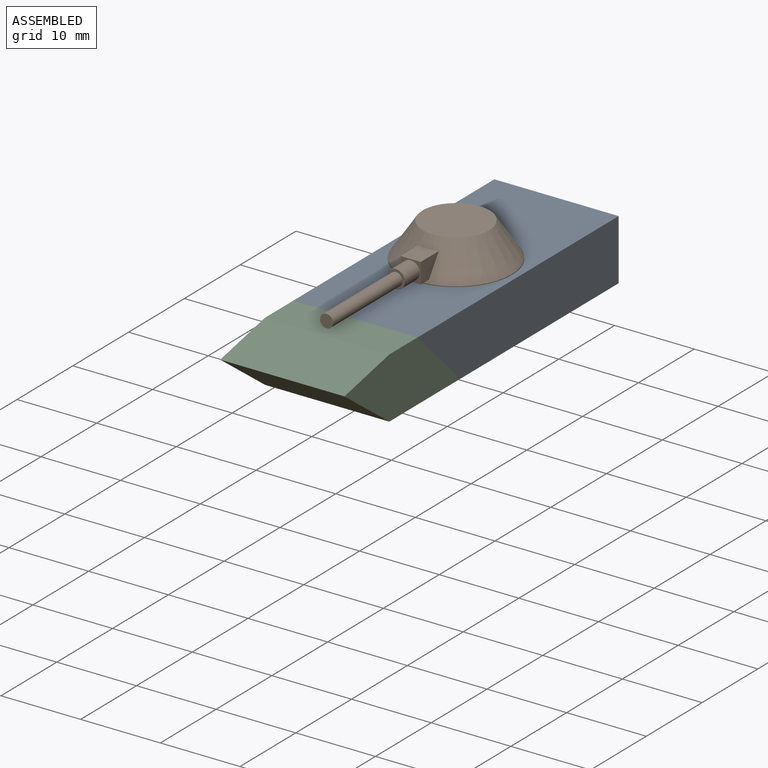
[diagram: assembled view]
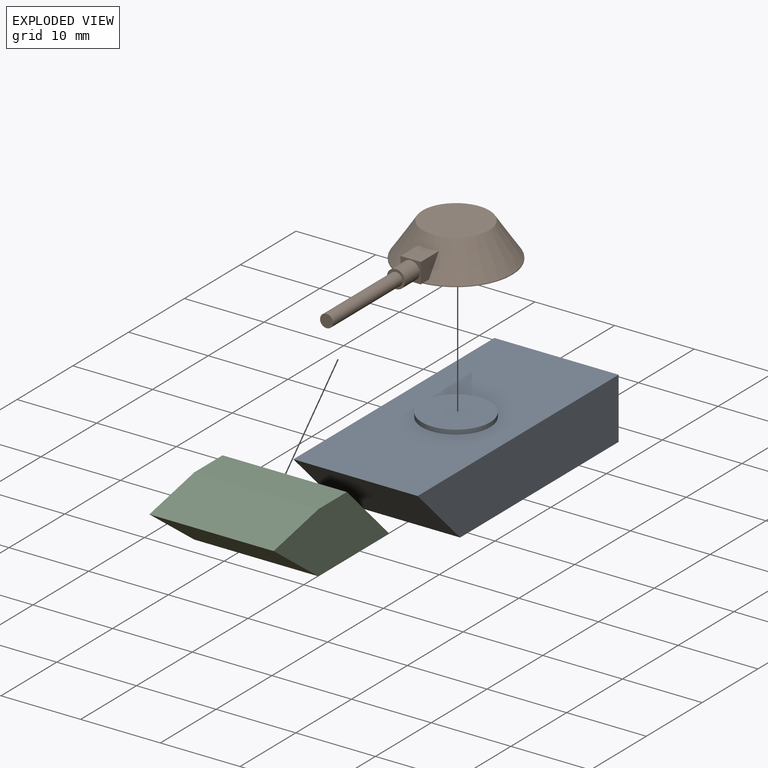
[diagram: exploded view]
GUIDED TOUR — MATED ASSEMBLY (Onshape document 009e5649e15d7b15c3161b02, AutoMate assembly 009e5649e15d7b15c3161b02_f679f5b906f1007318d9c520_9c38f8080bfe2e4f5b1a68ce_default)

This assembly has 3 components, labeled P0..P2 below (a component is one placed occurrence of a part; the same part can appear more than once), held together by 2 mates. A mate is a constraint between two components; its type names the relative motion it leaves free:
  PARALLEL — keeps the two listed directions parallel.
Axis/direction vectors are unit vectors and 'through' points are millimeter coordinates, both in the assembly's world frame.

MATES
  1. PARALLEL "Parallel 1": P1 <-> P0, direction (0.000, 0.000, -1.000) through (-10.23, -2.38, 9.39) mm
  2. PARALLEL "Parallel 2": P2 <-> P0, direction (0.000, 0.707, 0.707) through (-10.23, -16.58, 5.02) mm

ASSEMBLY ORDER
  1. P1 — the base component [order verified]
  2. P0 [order verified]
  3. P2 [order verified]
(P0 verified with a relaxed clearance tolerance: the source model stores slight part interference there.)
Order-tag legend:
  [order verified] — this step's position reverses a verified removal order: the component was checked to insert without passing through the ones already placed.

Of the 3 components, 2 carry the full construction recipe — the FeatureScript program that regenerates the part's solid from scratch; the rest are supplied as boundary geometry only.
Each toured component is shown spotlighted twice — in the assembled view, then in the exploded view, where a leader line traces a displaced component back to its assembled socket (saturated green if recipe-attached, orange if geometry-only; every other component desaturated gray) — followed by its recipe or geometry summary and the mates that hold it.
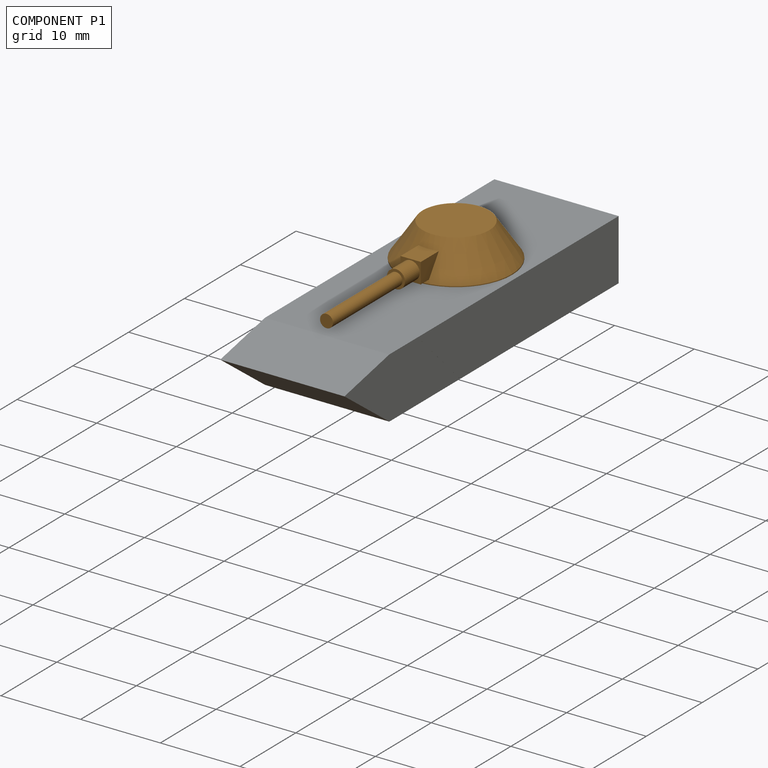
[diagram: component P1 — assembled]
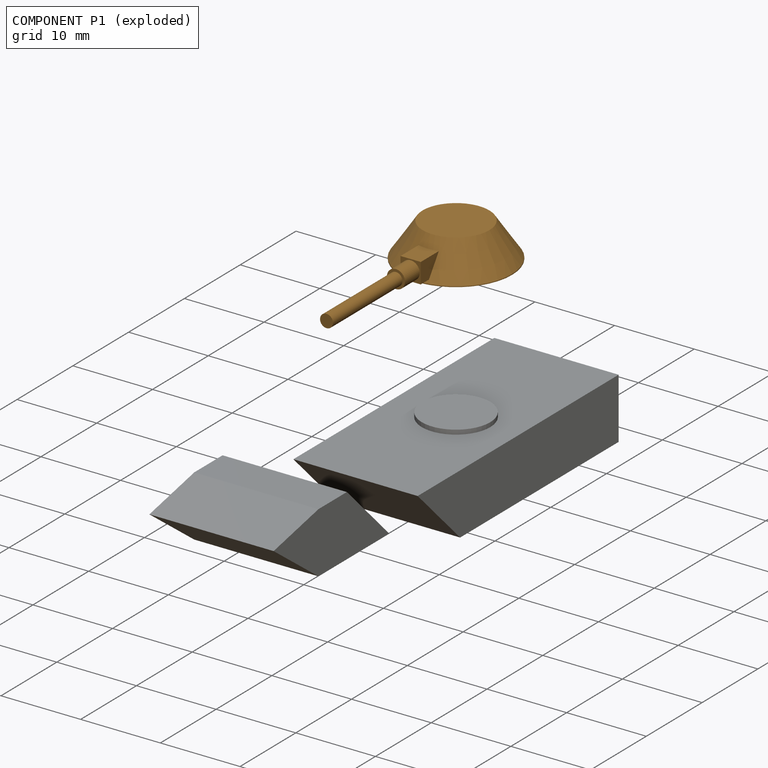
[diagram: component P1 — exploded]
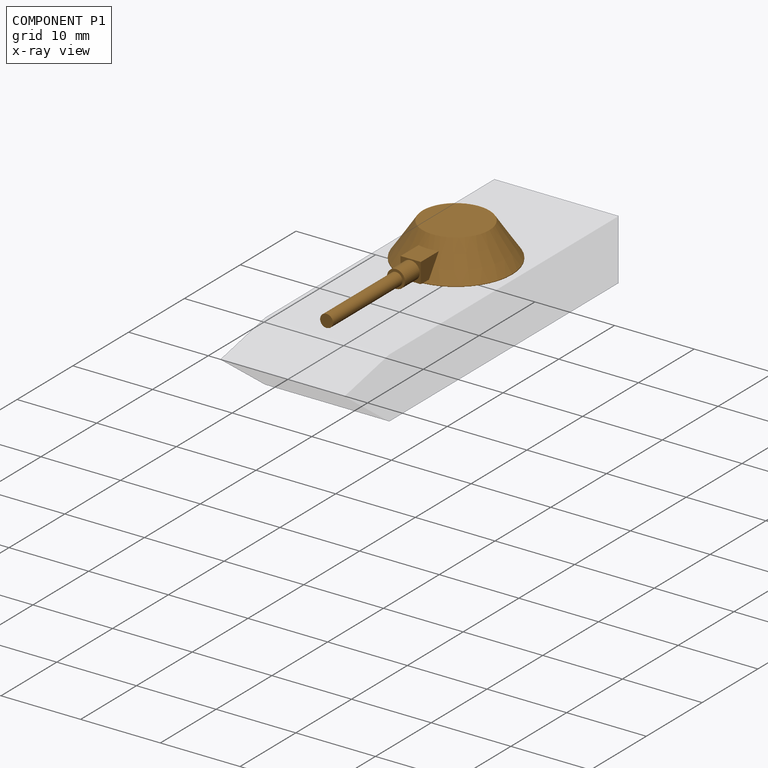
[diagram: component P1 — x-ray view]
COMPONENT P1 — geometry summary (no construction recipe available for this part):
  bounding box: 30.3 x 14.1 x 4.4 mm
  B-rep topology: 1 solid, 15 faces, 52 edges
  volume: 454 mm^3 (24% of its bounding box)
  symmetry: mirror-symmetric across its x mid-plane
Held by: PARALLEL mate "Parallel 1" to P0.
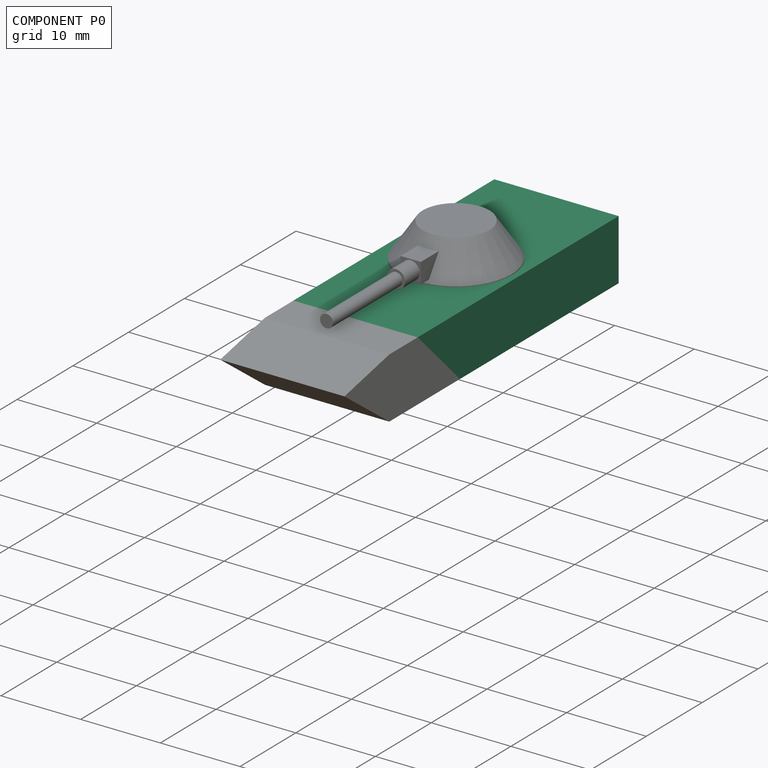
[diagram: component P0 — assembled]
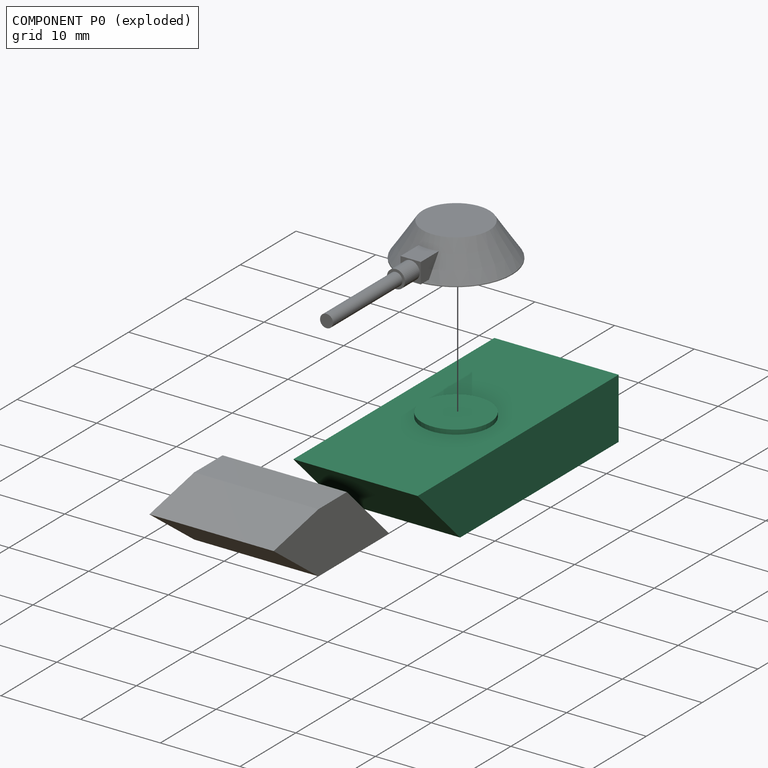
[diagram: component P0 — exploded]
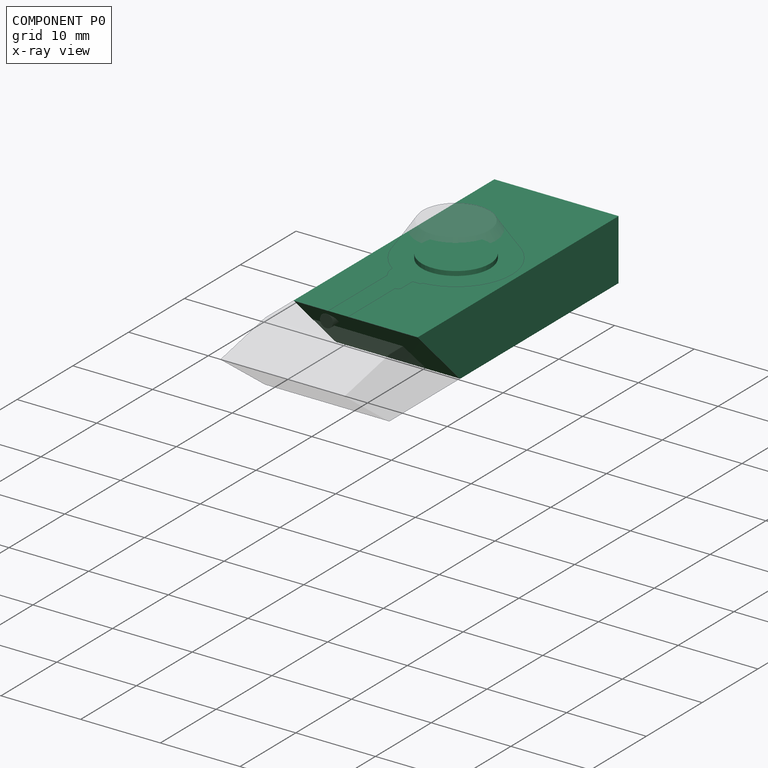
[diagram: component P0 — x-ray view]
COMPONENT P0 — recipe-attached (CADFS 00687879, mesh-verified: the recipe's output STEP matches this component's geometry to below the mesh-comparison resolution (tessellation chordal tolerance ~0.0602 mm)).
Held by: PARALLEL mate "Parallel 1" to P1; PARALLEL mate "Parallel 2" to P2.
Construction recipe (FeatureScript — the CAD program that rebuilds this solid; sketch coordinates are in the units given by the * unit suffixes, e.g. mm):

FeatureScript 1511;
import(path : "onshape/std/geometry.fs", version : "1511.0");
import(path : "onshape/std/common.fs", version : "1511.0");
const mm = millimeter;
const VERTEX = EntityType.VERTEX;
const EDGE = EntityType.EDGE;
const FACE = EntityType.FACE;
const BODY = EntityType.BODY;
function v(x, y){return vector(x, y);}
function OD(order){return orderDisambiguation(order);}
function OSD(set){return originalSetDisambiguation(set);}
function TD(topology){return topologyDisambiguation(topology);}
function TDD(query){return trueDependencyDisambiguation(query);}
function sQuery(a, b, c) {return sketchEntityQuery(a, b, c);}

annotation { "Feature Type Name" : "Feature", "Feature Type Description" : "" }
export const myFeature = defineFeature(function(context is Context, id is Id, definition is map)
    precondition{}
    {
        {
            var Q0;
            Q0=qCreatedBy(makeId("Top.planeOp"),FACE);
            var sketch = newSketch(context, id + "F0", { "sketchPlane" : qUnion([Q0])});
            skLineSegment(sketch, "E0.bottom", {"start": v(7.8, -18.02) * mm, "end": v(-7.8, -18.02) * mm});
            skLineSegment(sketch, "E0.top", {"start": v(7.8, 18.02) * mm, "end": v(-7.8, 18.02) * mm});
            skLineSegment(sketch, "E0.left", {"start": v(7.8, -18.02) * mm, "end": v(7.8, 18.02) * mm});
            skLineSegment(sketch, "E0.right", {"start": v(-7.8, -18.02) * mm, "end": v(-7.8, 18.02) * mm});
            skPoint(sketch, "E0.middle", {"position": v(0, 0) * mm});
            skSolve(sketch);
        }
        {
            var Q0;
            Q0 = qSketchRegion(id + "F0", true);
            extrude(context, id + "F1", {"entities" : qUnion([Q0]), "depth" : 7.62 * mm, "offsetDistance" : 25.4 * mm});
        }
        {
            var Q0;
            Q0=makeQuery(id+"F1.opExtrude","CAP_EDGE",EDGE,{"disambiguationData":[OSD([sQuery(id+"F0.wireOp",EDGE,"E0.bottom")])],"isStart":true});
            chamfer(context, id + "F2", {"entities" : qUnion([Q0]), "width" : 7.62 * mm, "tangentPropagation" : true});
        }
        {
            var Q0;
            Q0=makeQuery(id+"F1.opExtrude","CAP_FACE",FACE,{"disambiguationData":[OSD([sQuery(id+"F0.wireOp",EDGE,"E0.bottom"),sQuery(id+"F0.wireOp",EDGE,"E0.top"),sQuery(id+"F0.wireOp",EDGE,"E0.left"),sQuery(id+"F0.wireOp",EDGE,"E0.right")])],"isStart":false});
            var sketch = newSketch(context, id + "F3", { "sketchPlane" : qUnion([Q0])});
            skCircle(sketch, "E1", {"center": v(0, 0) * mm, "radius": 4.3 * mm});
            skSolve(sketch);
        }
        {
            var Q0;
            Q0 = qSketchRegion(id + "F3", true);
            extrude(context, id + "F4", {"entities" : qUnion([Q0]), "operationType" : NewBodyOperationType.ADD, "depth" : 0.56 * mm, "offsetDistance" : 25.4 * mm});
        }
    });
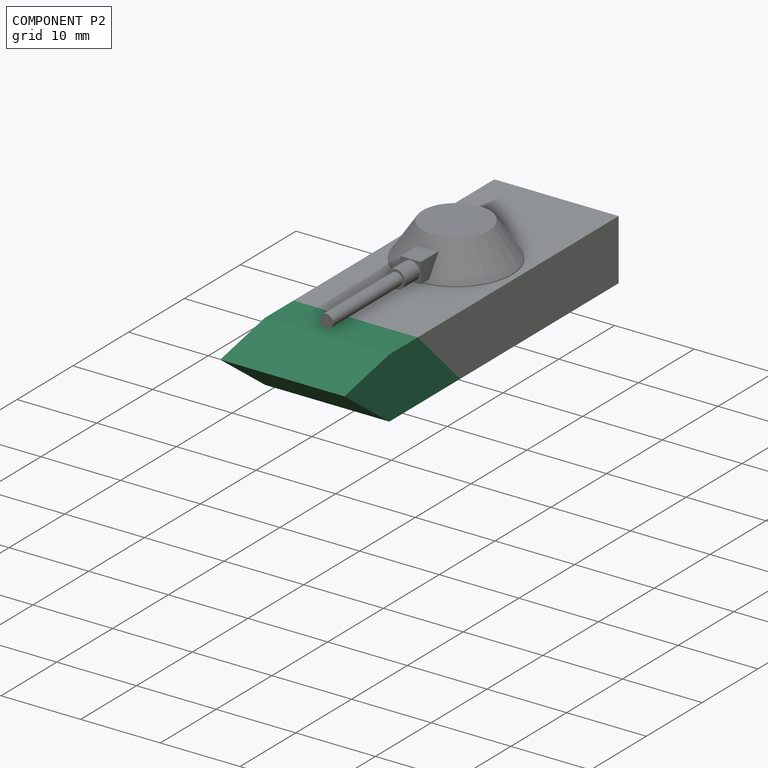
[diagram: component P2 — assembled]
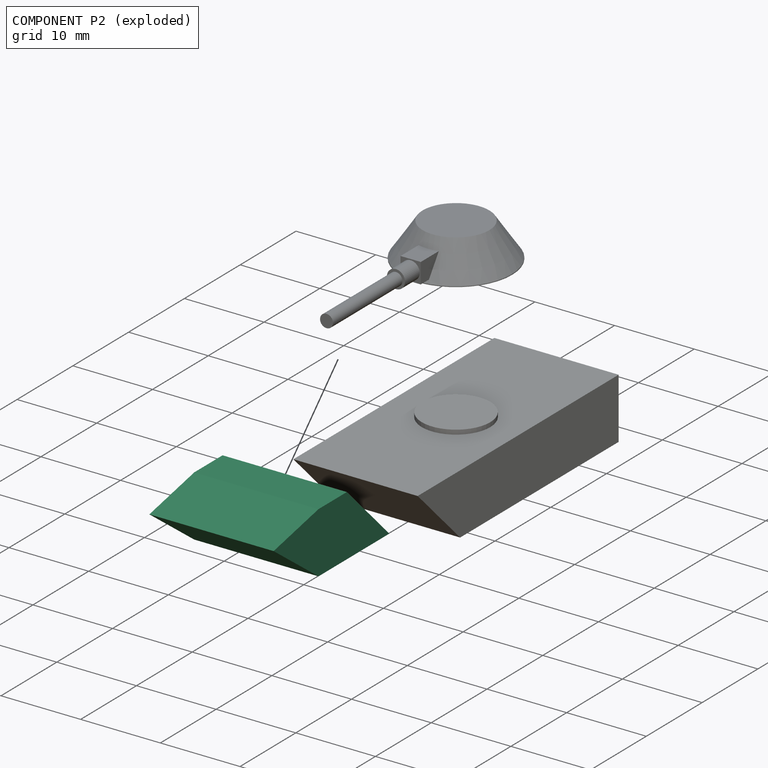
[diagram: component P2 — exploded]
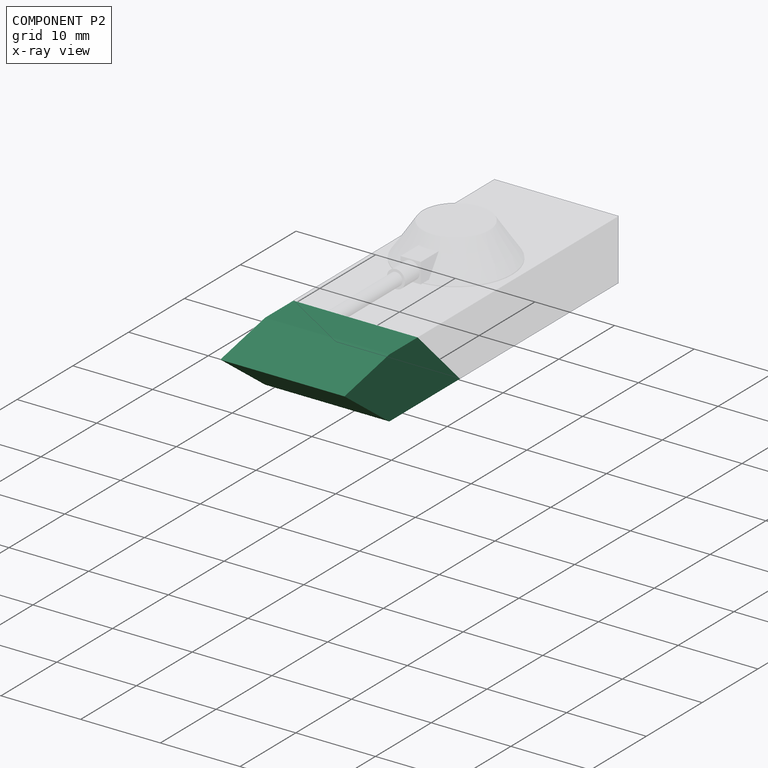
[diagram: component P2 — x-ray view]
COMPONENT P2 — recipe-attached (CADFS 00687882, mesh-verified: the recipe's output STEP matches this component's geometry to below the mesh-comparison resolution (tessellation chordal tolerance ~0.0406 mm)).
Held by: PARALLEL mate "Parallel 2" to P0.
Construction recipe (FeatureScript — the CAD program that rebuilds this solid; sketch coordinates are in the units given by the * unit suffixes, e.g. mm):

FeatureScript 1511;
import(path : "onshape/std/geometry.fs", version : "1511.0");
import(path : "onshape/std/common.fs", version : "1511.0");
const mm = millimeter;
const VERTEX = EntityType.VERTEX;
const EDGE = EntityType.EDGE;
const FACE = EntityType.FACE;
const BODY = EntityType.BODY;
function v(x, y){return vector(x, y);}
function OD(order){return orderDisambiguation(order);}
function OSD(set){return originalSetDisambiguation(set);}
function TD(topology){return topologyDisambiguation(topology);}
function TDD(query){return trueDependencyDisambiguation(query);}
function sQuery(a, b, c) {return sketchEntityQuery(a, b, c);}

annotation { "Feature Type Name" : "Feature", "Feature Type Description" : "" }
export const myFeature = defineFeature(function(context is Context, id is Id, definition is map)
    precondition{}
    {
        {
            var Q0;
            Q0=qCreatedBy(makeId("Right.planeOp"),FACE);
            var sketch = newSketch(context, id + "F0", { "sketchPlane" : qUnion([Q0])});
            skLineSegment(sketch, "E0.bottom", {"start": v(0, 0) * mm, "end": v(-12.7, 0) * mm});
            skLineSegment(sketch, "E0.top", {"start": v(0, 7.62) * mm, "end": v(-12.7, 7.62) * mm});
            skLineSegment(sketch, "E0.left", {"start": v(0, 0) * mm, "end": v(0, 7.62) * mm});
            skLineSegment(sketch, "E0.right", {"start": v(-12.7, 0) * mm, "end": v(-12.7, 7.62) * mm});
            skLineSegment(sketch, "E1", {"start": v(-12.7, 0) * mm, "end": v(-20.74, 5.93) * mm});
            skLineSegment(sketch, "E2", {"start": v(-20.74, 5.93) * mm, "end": v(-12.7, 7.62) * mm});
            skSolve(sketch);
        }
        {
            var Q0;
            Q0 = qSketchRegion(id + "F0", true);
            extrude(context, id + "F1", {"entities" : qUnion([Q0]), "depth" : 15.6 * mm, "offsetDistance" : 25.4 * mm});
        }
        {
            var Q0;
            Q0=makeQuery(id+"F1.opExtrude","SWEPT_EDGE",EDGE,{"disambiguationData":[OSD([sQuery(id+"F0.wireOp",EDGE,"E0.top"),sQuery(id+"F0.wireOp",EDGE,"E0.left")])]});
            chamfer(context, id + "F2", {"entities" : qUnion([Q0]), "width" : 7.62 * mm, "tangentPropagation" : true});
        }
    });
PROVENANCE & LICENSES
Assembly (occurrences, transforms, mates, per-part STEP geometry): AutoMate dataset, Zenodo record 7776208, CC0.
Construction recipes: CADFS (HuggingFace VladPyatov/CADFS, CC-BY-4.0, layered over the ABC dataset), FeatureScript reconstruction programs keyed by ABC model id.
Join: ABC meta listings map ABC model id -> Onshape documentId; within a shared document, parts are matched by geometric signature (bounding-box dims + volume at 0.1% relative tolerance, exact B-rep face/solid counts).
Verification: 2 of this assembly's 3 components carry a recipe attachment, and every attachment is mesh-verified: the CADFS STEP and the AutoMate member STEP were compared as meshes in their shared local frame (symmetric sampled-point-to-mesh distance); worst across the 2 attachments: below the mesh-comparison resolution (tessellation chordal tolerance ~0.0602 mm) on a 40 mm part.
Renders: orthographic iso camera (az 35 / el 25); the floor grid conveys scale (grid pitch printed in each image; no ruler). In the exploded view each component is displaced by its stored offset vector: the offsets alone carry the explosion direction (mate normal/axis signs are not orientation cues and do not encode it), and separation distances are assigned per mate-chain, not proportionally to assembly-order depth.
